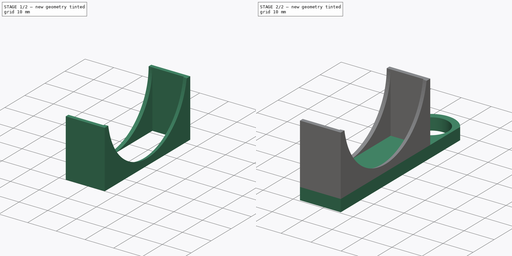
[diagram: build sequence overview — one tinted view per stage of 2, left to right]
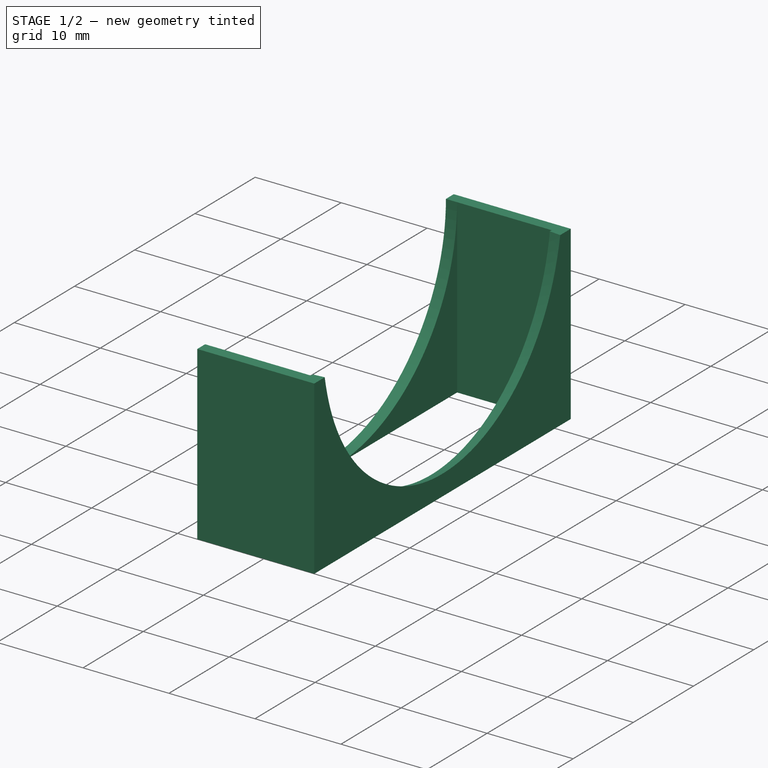
[diagram: stage 1 of 2 — iso view after this stage's code; geometry added in this stage tinted green]
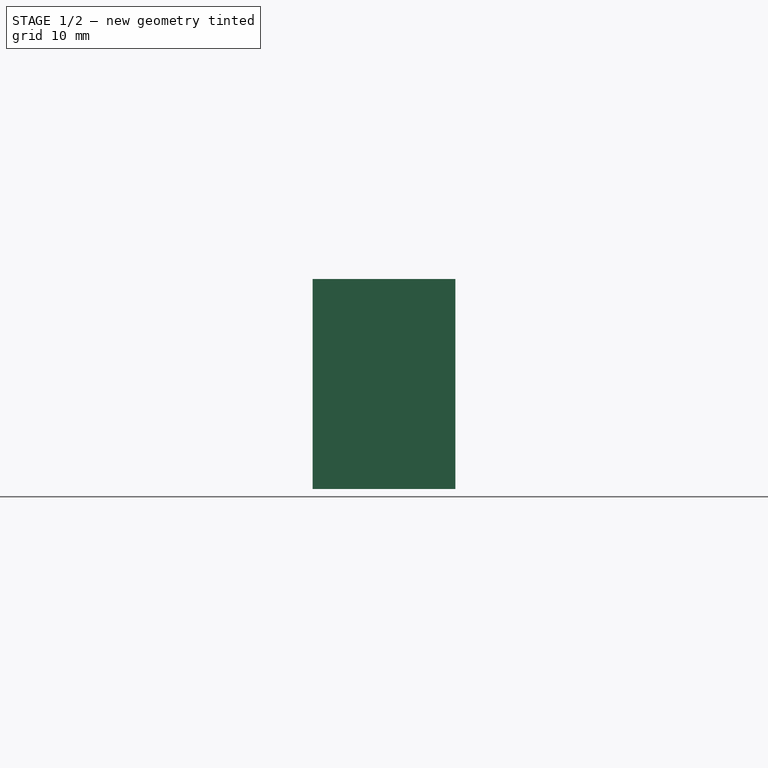
[diagram: stage 1 of 2 — front view after this stage's code; geometry added in this stage tinted green]
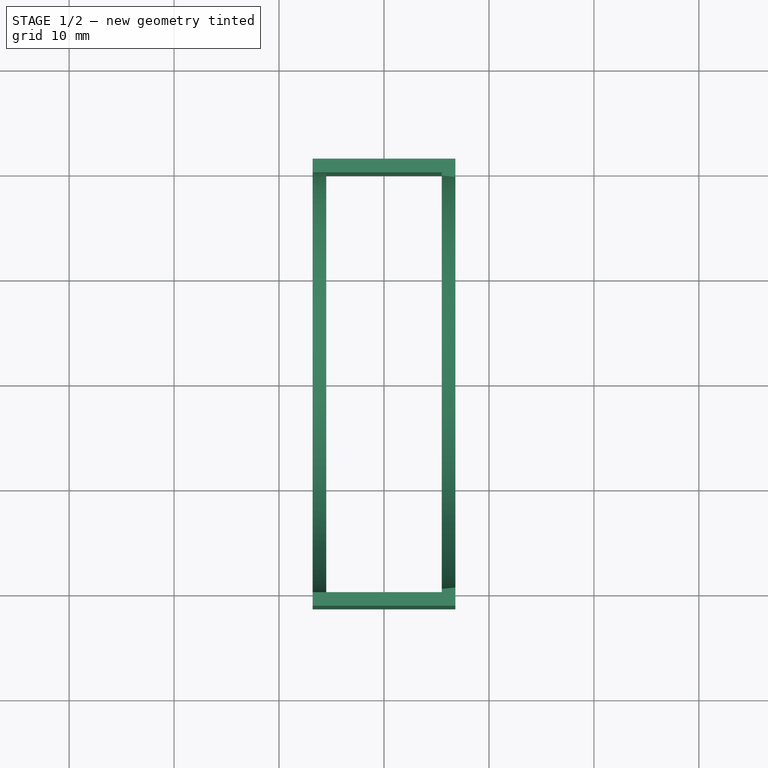
[diagram: stage 1 of 2 — top view after this stage's code; geometry added in this stage tinted green]
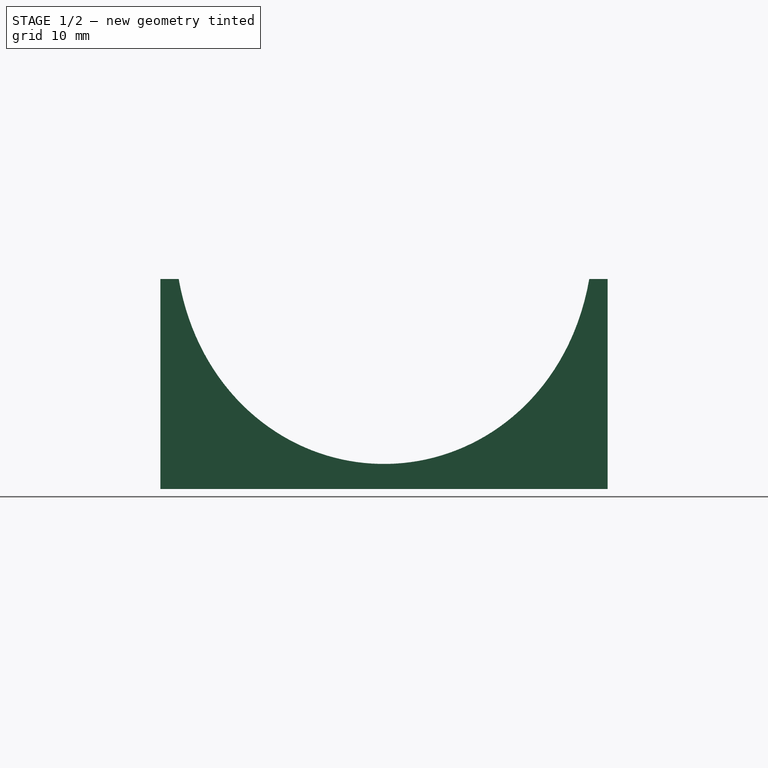
[diagram: stage 1 of 2 — right view after this stage's code; geometry added in this stage tinted green]
FCSTD DOCUMENT  (FreeCAD 0.16R)
Label: microscope_holder
License: All rights reserved
LicenseURL: http://en.wikipedia.org/wiki/All_rights_reserved
objects: Sketcher::SketchObject×5, PartDesign::Pad×2, PartDesign::Groove×1
note: 11 computed .brp shape members not serialized (recipe doc carries the construction recipe); baked Part::Feature solids carry a one-line shape summary decoded from their .brp

FEATURE [Sketcher::SketchObject] Sketch  label="construction"
  expr: Constraints[22] = Constraints.thicknessWidth
  expr: Constraints[21] = Constraints.thicknessWidth
  expr: Constraints.Constraint19 = Constraints.thicknessWidth
  sketch-geometry (10):
    g0: LineSegment [constr] StartX=-5.5 StartY=20 StartZ=0 EndX=5.5 EndY=20 EndZ=0
    g1: LineSegment [constr] StartX=5.5 StartY=20 StartZ=0 EndX=5.5 EndY=-20 EndZ=0
    g2: LineSegment [constr] StartX=5.5 StartY=-20 StartZ=0 EndX=-5.5 EndY=-20 EndZ=0
    g3: LineSegment [constr] StartX=-5.5 StartY=-20 StartZ=0 EndX=-5.5 EndY=20 EndZ=0
    g4: LineSegment [constr] StartX=-6.8 StartY=21.3 StartZ=0 EndX=6.8 EndY=21.3 EndZ=0
    g5: LineSegment [constr] StartX=6.8 StartY=21.3 StartZ=0 EndX=6.8 EndY=-21.3 EndZ=0
    g6: LineSegment [constr] StartX=6.8 StartY=-21.3 StartZ=0 EndX=-6.8 EndY=-21.3 EndZ=0
    g7: LineSegment [constr] StartX=-6.8 StartY=-21.3 StartZ=0 EndX=-6.8 EndY=21.3 EndZ=0
    g8: Circle [constr] CenterX=0 CenterY=-31.3 CenterZ=0 NormalX=0 NormalY=0 NormalZ=1 Radius=5.8
    g9: Circle [constr] CenterX=0 CenterY=-31.3 CenterZ=0 NormalX=0 NormalY=0 NormalZ=1 Radius=8
  constraints (28):
    c: Coincident(g0,g1)
    c: Coincident(g1,g2)
    c: Coincident(g2,g3)
    c: Coincident(g3,g0)
    c: Horizontal(g2)
    c: Vertical(g1)
    c: Vertical(g3)
    c: DistanceX(g0,g0) = 11  'fanInnerWidth'
    c: DistanceY(g1,g0) = 40  'fanInnerHeight'
    c: Coincident(g4,g5)
    c: Coincident(g5,g6)
    c: Coincident(g6,g7)
    c: Coincident(g7,g4)
    c: Horizontal(g4)
    c: Horizontal(g6)
    c: Vertical(g5)
    c: Vertical(g7)
    c: DistanceX(g4,g0) = 1.3  'thicknessWidth'
    c: DistanceY(g0,g4) = 1.3  'Constraint19'
    c: Symmetric(g0,g0,g-2)
    c: Symmetric(g0,g1,g-1)
    c: DistanceX(g0,g4) = 1.3
    c: DistanceY(g6,g2) = 1.3
    c: PointOnObject(g8,g-2)
    c: Coincident(g9,g8)
    c: Radius(g8) = 5.8  'holderInnerDiameter'
    c: Radius(g9) = 8  'holderOuterDiameter'
    c: DistanceY(g8,g5) = 10  'holderSeparation'
FEATURE [Sketcher::SketchObject] Sketch001
  expr: Constraints[23] = construction.Constraints.thicknessWidth
  expr: Constraints[22] = construction.Constraints.thicknessWidth
  expr: Constraints[11] = construction.Constraints.fanInnerHeight
  expr: Constraints[10] = construction.Constraints.fanInnerWidth
  sketch-geometry (8):
    g0: LineSegment StartX=-5.5 StartY=20 StartZ=0 EndX=5.5 EndY=20 EndZ=0
    g1: LineSegment StartX=5.5 StartY=20 StartZ=0 EndX=5.5 EndY=-20 EndZ=0
    g2: LineSegment StartX=5.5 StartY=-20 StartZ=0 EndX=-5.5 EndY=-20 EndZ=0
    g3: LineSegment StartX=-5.5 StartY=-20 StartZ=0 EndX=-5.5 EndY=20 EndZ=0
    g4: LineSegment StartX=-6.8 StartY=21.3 StartZ=0 EndX=6.8 EndY=21.3 EndZ=0
    g5: LineSegment StartX=6.8 StartY=21.3 StartZ=0 EndX=6.8 EndY=-21.3 EndZ=0
    g6: LineSegment StartX=6.8 StartY=-21.3 StartZ=0 EndX=-6.8 EndY=-21.3 EndZ=0
    g7: LineSegment StartX=-6.8 StartY=-21.3 StartZ=0 EndX=-6.8 EndY=21.3 EndZ=0
  constraints (24):
    c: Coincident(g0,g1)
    c: Coincident(g1,g2)
    c: Coincident(g2,g3)
    c: Coincident(g3,g0)
    c: Horizontal(g0)
    c: Horizontal(g2)
    c: Vertical(g1)
    c: Vertical(g3)
    c: Symmetric(g0,g0,g-2)
    c: Symmetric(g0,g1,g-1)
    c: DistanceX(g0,g0) = 11
    c: DistanceY(g1,g0) = 40
    c: Coincident(g4,g5)
    c: Coincident(g5,g6)
    c: Coincident(g6,g7)
    c: Coincident(g7,g4)
    c: Horizontal(g4)
    c: Horizontal(g6)
    c: Vertical(g5)
    c: Vertical(g7)
    c: Symmetric(g4,g4,g-2)
    c: Symmetric(g5,g4,g-1)
    c: DistanceX(g0,g4) = 1.3
    c: DistanceY(g0,g4) = 1.3
FEATURE [PartDesign::Pad] Pad  label="Fan cover"
  Length = 20
  Length2 = 100
  Sketch = -> Sketch001
  Type = 0
FEATURE [Sketcher::SketchObject] Sketch002  label="Sketch Fan"
  Placement = pos=(-6.8,0,0) rot=(0.57735,-0.57735,-0.57735;2.0944rad)
  Support = -> Pad [Face4]
  expr: Constraints[20] = Constraints.fanScrewDistance
  expr: Constraints[19] = Constraints.fanScrewDistance
  expr: Constraints[16] = Constraints.fanScrewDistance
  expr: Constraints[13] = construction.Constraints.fanInnerHeight / 2
  expr: Constraints[11] = construction.Constraints.fanInnerHeight
  expr: Constraints[9] = construction.Constraints.fanInnerHeight
  sketch-geometry (7):
    g0: LineSegment [constr] StartX=-20 StartY=40 StartZ=0 EndX=20 EndY=40 EndZ=0
    g1: LineSegment [constr] StartX=20 StartY=40 StartZ=0 EndX=20 EndY=0 EndZ=0
    g2: LineSegment [constr] StartX=20 StartY=0 StartZ=0 EndX=-20 EndY=0 EndZ=0
    g3: LineSegment [constr] StartX=-20 StartY=0 StartZ=0 EndX=-20 EndY=40 EndZ=0
    g4: Circle CenterX=0 CenterY=20 CenterZ=0 NormalX=0 NormalY=0 NormalZ=1 Radius=20
    g5: Circle [constr] CenterX=-10 CenterY=10 CenterZ=0 NormalX=0 NormalY=0 NormalZ=1 Radius=8
    g6: Circle [constr] CenterX=10 CenterY=10 CenterZ=0 NormalX=0 NormalY=0 NormalZ=1 Radius=8
  constraints (21):
    c: Coincident(g0,g1)
    c: Coincident(g1,g2)
    c: Coincident(g2,g3)
    c: Coincident(g3,g0)
    c: Horizontal(g0)
    c: Horizontal(g2)
    c: Vertical(g1)
    c: Vertical(g3)
    c: Symmetric(g2,g1,g-2)
    c: DistanceY(g1,g0) = 40
    c: DistanceY(g1,g-1) = 0
    c: DistanceX(g2,g1) = 40
    c: PointOnObject(g4,g-2)
    c: DistanceY(g1,g4) = 20
    c: Radius(g4) = 20  'fanCoverHoleRadius'
    c: DistanceX(g2,g5) = 10  'fanScrewDistance'
    c: DistanceX(g6,g1) = 10
    c: Radius(g5) = 8  'fanScrewRadius'
    c: Equal(g5,g6)
    c: DistanceY(g2,g5) = 10
    c: DistanceY(g1,g6) = 10
FEATURE [PartDesign::Groove] Groove
  Angle = 360
  Axis = (0,-40,0)
  Base = (-6.8,20,40)
  ReferenceAxis = -> Sketch002 [Axis0]
  Sketch = -> Sketch002
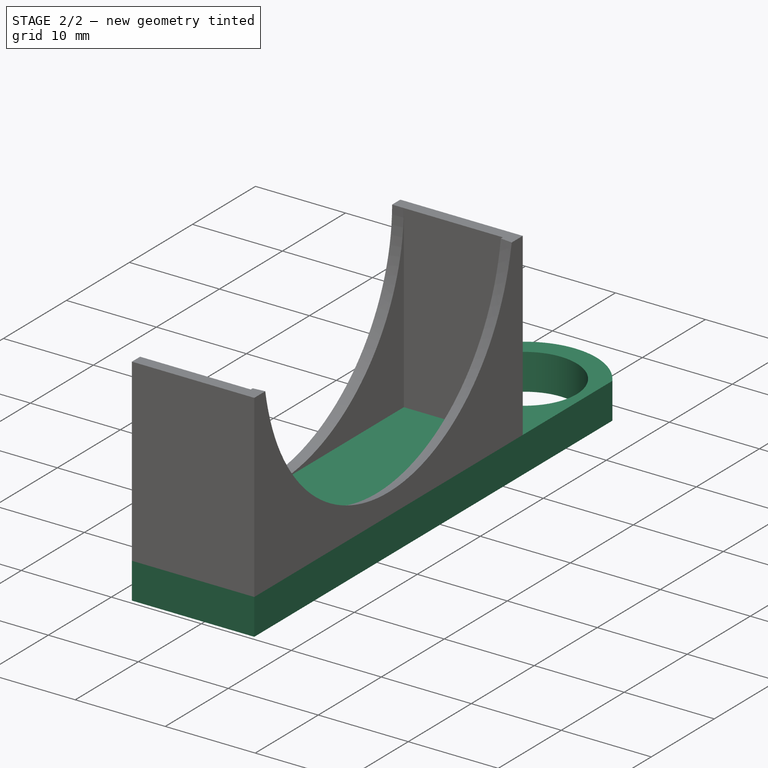
[diagram: stage 2 of 2 — iso view after this stage's code; geometry added in this stage tinted green]
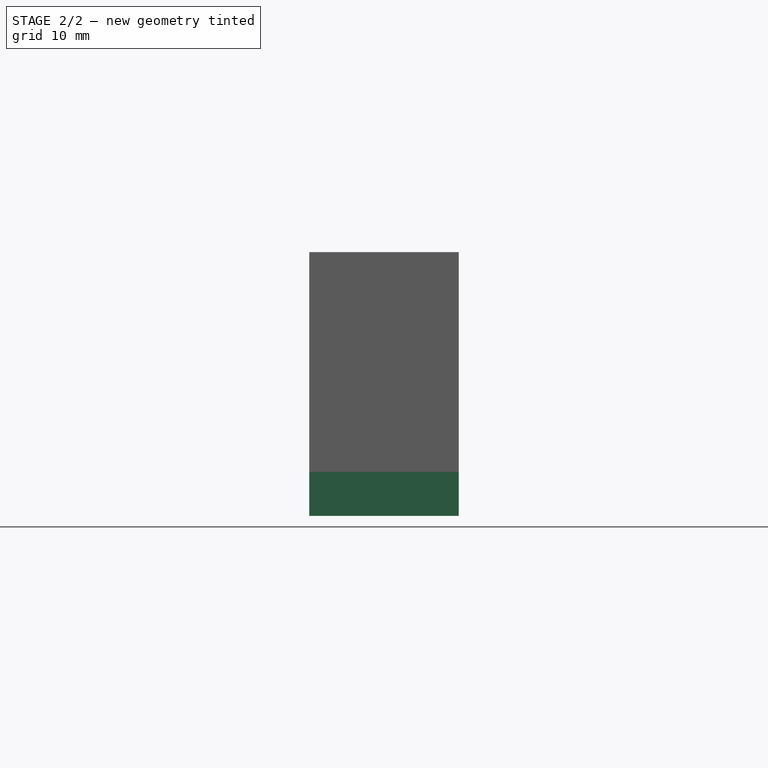
[diagram: stage 2 of 2 — front view after this stage's code; geometry added in this stage tinted green]
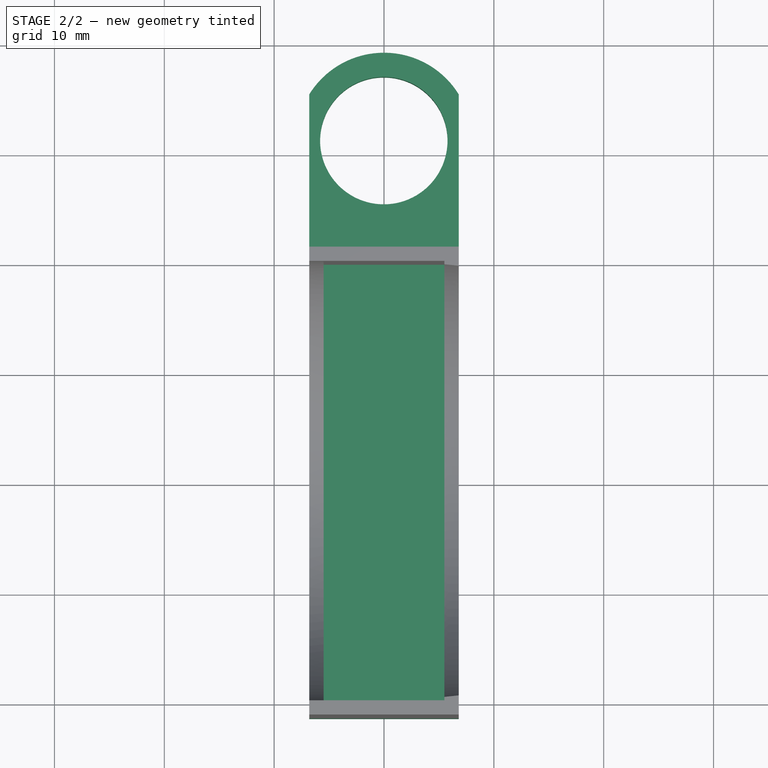
[diagram: stage 2 of 2 — top view after this stage's code; geometry added in this stage tinted green]
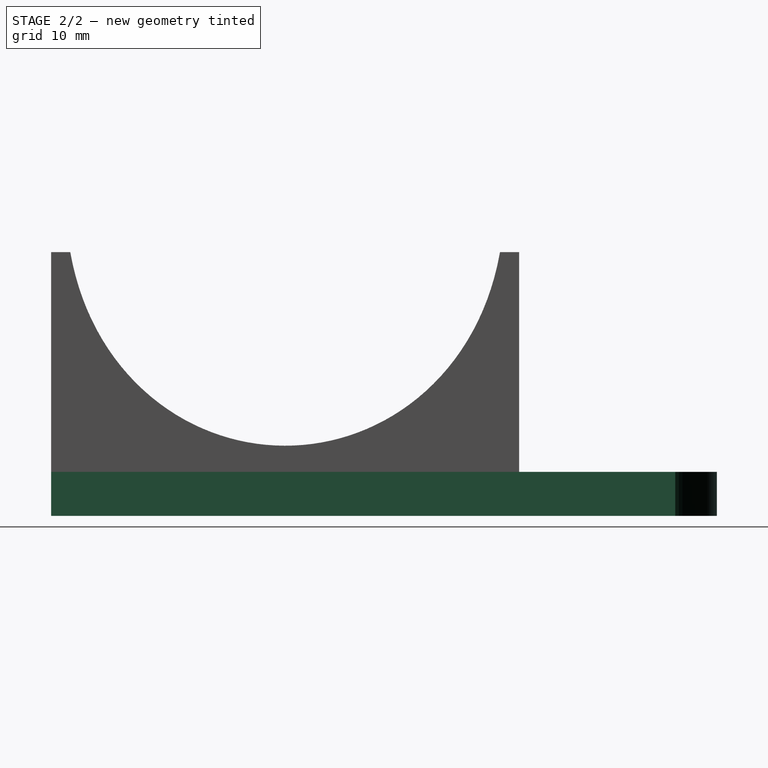
[diagram: stage 2 of 2 — right view after this stage's code; geometry added in this stage tinted green]
FEATURE [Sketcher::SketchObject] Sketch004  label="inner holder"
  expr: Constraints[1] = construction.Constraints.holderInnerDiameter
  sketch-geometry (1):
    g0: Circle CenterX=0 CenterY=-30.8856 CenterZ=0 NormalX=0 NormalY=0 NormalZ=1 Radius=5.8
  constraints (2):
    c: PointOnObject(g0,g-2)
    c: Radius(g0) = 5.8
FEATURE [Sketcher::SketchObject] Sketch005  label="base"
  ExternalGeometry = -> [Groove]
  Placement = pos=(0,0,0) rot=(1,0,0;3.14159rad)
  Support = -> Groove [Face4]
  expr: Constraints[14] = construction.Constraints.holderInnerDiameter
  expr: Constraints[13] = construction.Constraints.holderOuterDiameter
  expr: Constraints[12] = construction.Constraints.holderSeparation
  expr: Constraints.baseTotalWidth = construction.Constraints.fanInnerWidth + 2 * construction.Constraints.thicknessWidth
  expr: Constraints[6] = construction.Constraints.fanInnerHeight / 2 + construction.Constraints.thicknessWidth
  sketch-geometry (5):
    g0: LineSegment StartX=-6.8 StartY=21.3 StartZ=0 EndX=6.8 EndY=21.3 EndZ=0
    g1: LineSegment StartX=6.8 StartY=21.3 StartZ=0 EndX=6.8 EndY=-35.5143 EndZ=0
    g2: LineSegment StartX=-6.8 StartY=-35.5143 StartZ=0 EndX=-6.8 EndY=21.3 EndZ=0
    g3: ArcOfCircle CenterX=0 CenterY=-31.3 CenterZ=0 NormalX=0 NormalY=0 NormalZ=1 Radius=8 StartAngle=3.6964 EndAngle=5.72837
    g4: Circle CenterX=-0.017483 CenterY=-31.2965 CenterZ=0 NormalX=0 NormalY=0 NormalZ=1 Radius=5.8
  constraints (15):
    c: Coincident(g0,g1)
    c: Coincident(g2,g0)
    c: Horizontal(g0)
    c: Vertical(g1)
    c: Vertical(g2)
    c: Symmetric(g0,g0,g-2)
    c: DistanceY(g-1,g0) = 21.3
    c: DistanceX(g0,g0) = 13.6  'baseTotalWidth'
    c: PointOnObject(g3,g-2)  'Constraint9'
    c: Coincident(g3,g1)
    c: Symmetric(g1,g3,g-2)
    c: Coincident(g2,g3)
    c: DistanceY(g3,g-3) = 10
    c: Radius(g3) = 8
    c: Radius(g4) = 5.8
FEATURE [PartDesign::Pad] Pad001  label="Base"
  Length = 4
  Length2 = 100
  Sketch = -> Sketch005
  Type = 0
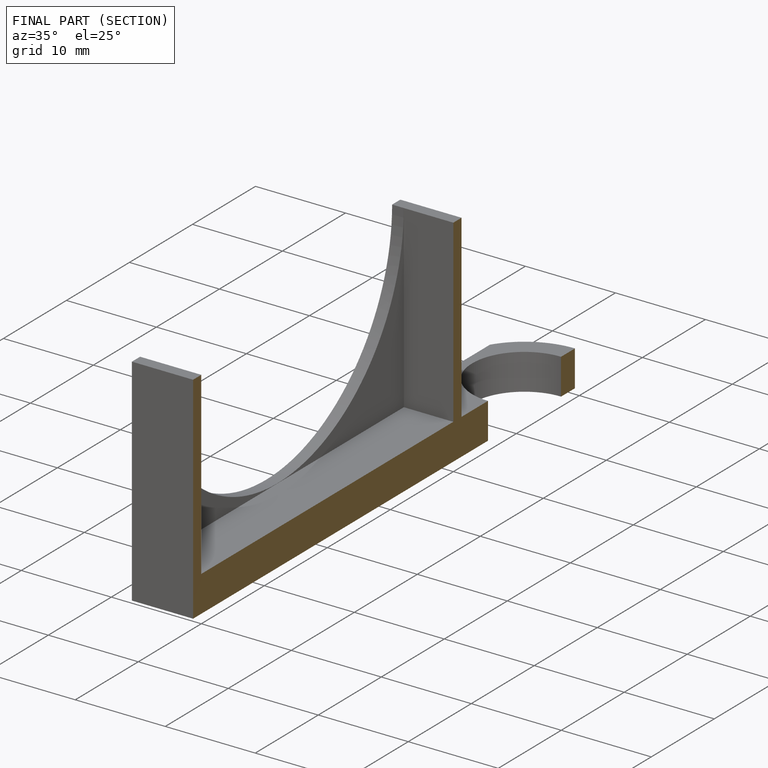
[diagram: finished part — half-section view (interior)]
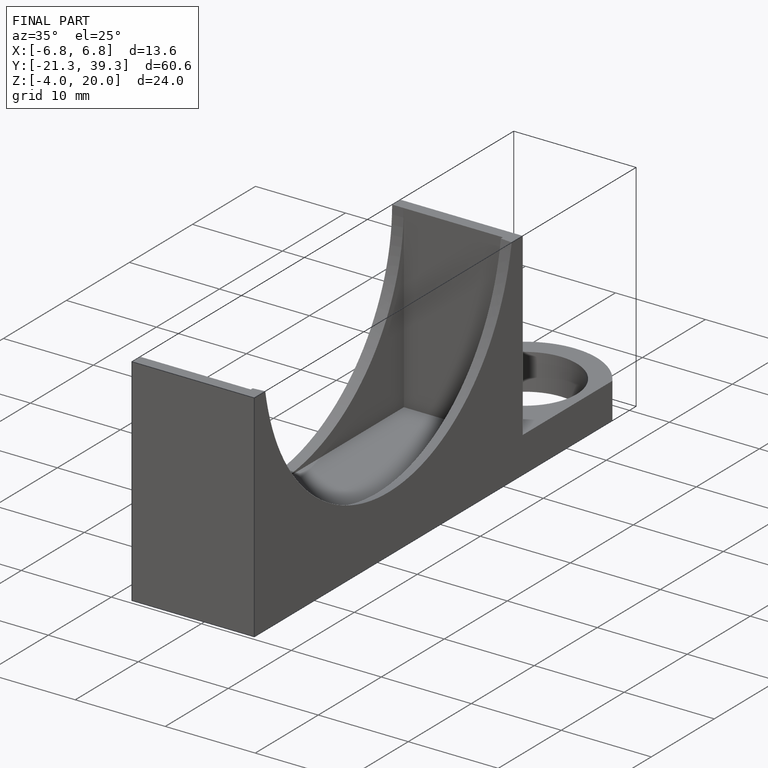
[diagram: finished part — iso view with bounding-box wireframe]
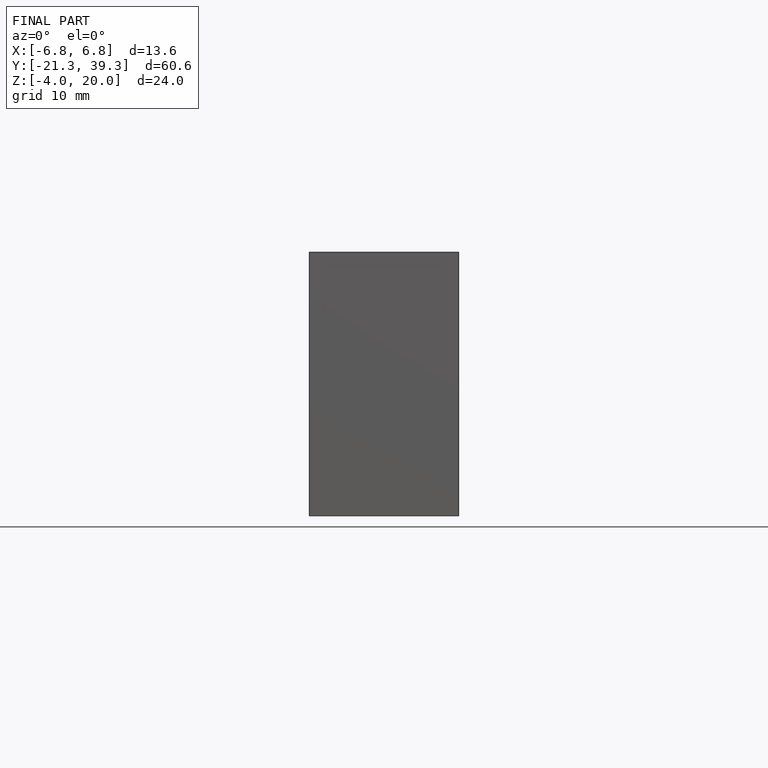
[diagram: finished part — front view with bounding-box wireframe]
